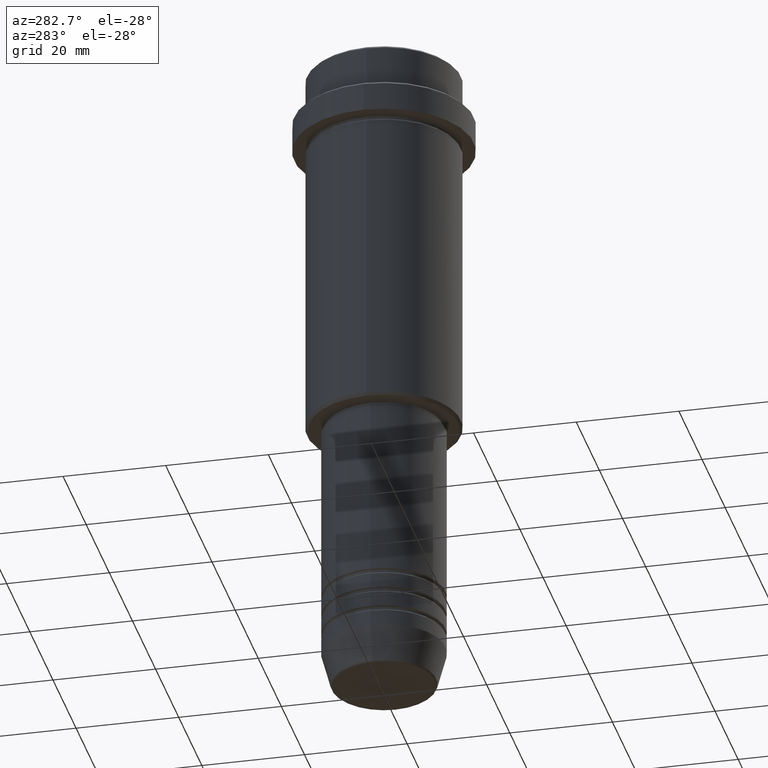
[diagram: clean part render]
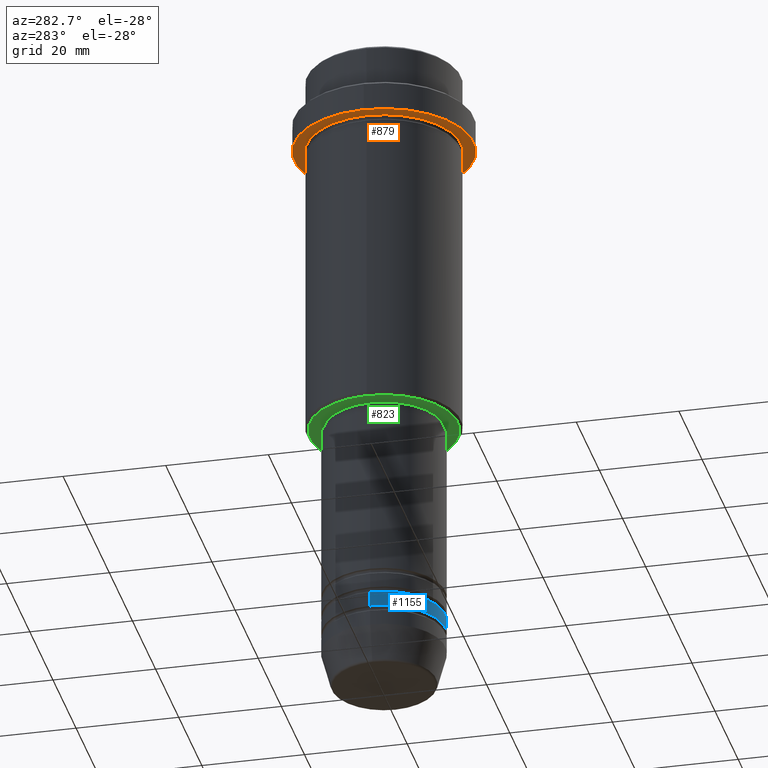
[diagram: same view with three faces highlighted in distinct colors, each labeled with its STEP entity id]
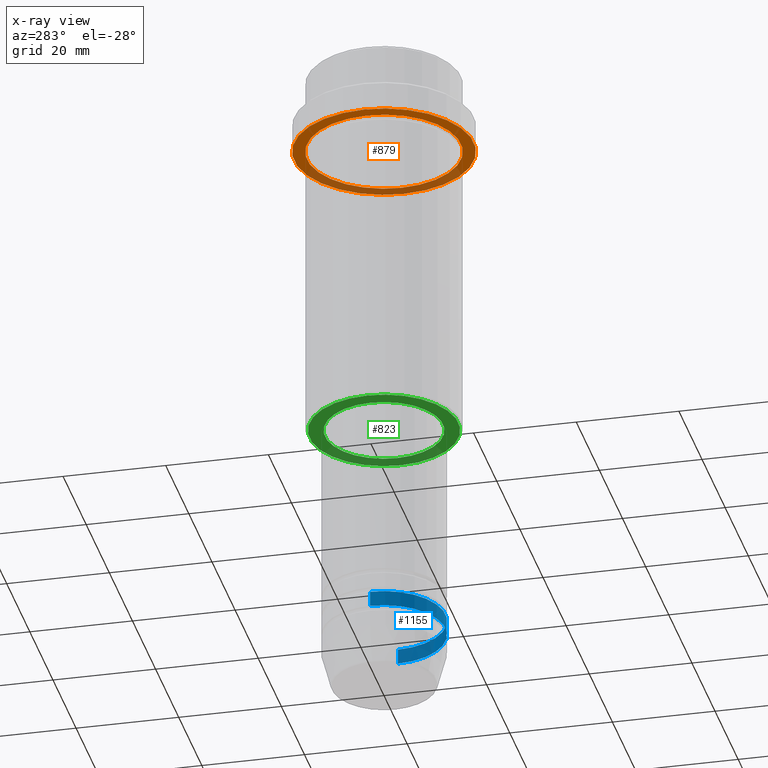
[diagram: x-ray of the same camera — body ghosted, the three highlighted faces saturated]
A machine part, auxiliary view with three faces highlighted in distinct colors.
The next image is the same camera in x-ray (body ghosted, the three faces saturated) — at least one of them is partly hidden behind the body in this view.
Their STEP definitions:

[orange] entity #879 — the highlighted planar face has unit normal (0, 0, -1).
#4 = CARTESIAN_POINT ( 'NONE',  ( 0.000000000000000000, 17.50000000000000000, -15.00000000000000000 ) ) ;
#50 = ORIENTED_EDGE ( 'NONE', *, *, #265, .T. ) ;
#79 = CARTESIAN_POINT ( 'NONE',  ( -14.99999999999999467, 0.000000000000000000, -15.00000000000000000 ) ) ;
#88 = DIRECTION ( 'NONE',  ( -1.000000000000000000, 0.000000000000000000, -0.000000000000000000 ) ) ;
#92 = VERTEX_POINT ( 'NONE', #79 ) ;
#132 = CARTESIAN_POINT ( 'NONE',  ( 0.000000000000000000, 0.000000000000000000, -15.00000000000000000 ) ) ;
#160 = AXIS2_PLACEMENT_3D ( 'NONE', #4, #337, #88 ) ;
#213 = EDGE_LOOP ( 'NONE', ( #50, #724 ) ) ;
#257 = FACE_BOUND ( 'NONE', #213, .T. ) ;
#265 = EDGE_CURVE ( 'NONE', #92, #817, #364, .T. ) ;
#301 = VERTEX_POINT ( 'NONE', #422 ) ;
#322 = CIRCLE ( 'NONE', #1392, 17.50000000000000000 ) ;
#337 = DIRECTION ( 'NONE',  ( 0.000000000000000000, 0.000000000000000000, -1.000000000000000000 ) ) ;
#364 = CIRCLE ( 'NONE', #844, 14.99999999999999467 ) ;
#385 = DIRECTION ( 'NONE',  ( -0.000000000000000000, -0.000000000000000000, 1.000000000000000000 ) ) ;
#402 = AXIS2_PLACEMENT_3D ( 'NONE', #1143, #385, #700 ) ;
#404 = VERTEX_POINT ( 'NONE', #417 ) ;
#417 = CARTESIAN_POINT ( 'NONE',  ( 17.50000000000000000, 0.000000000000000000, -15.00000000000000000 ) ) ;
#418 = DIRECTION ( 'NONE',  ( -0.000000000000000000, -0.000000000000000000, 1.000000000000000000 ) ) ;
#422 = CARTESIAN_POINT ( 'NONE',  ( -17.50000000000000000, 2.143131898507868248E-15, -15.00000000000000000 ) ) ;
#471 = DIRECTION ( 'NONE',  ( 1.000000000000000000, 0.000000000000000000, 0.000000000000000000 ) ) ;
#536 = EDGE_LOOP ( 'NONE', ( #841, #1169 ) ) ;
#556 = EDGE_CURVE ( 'NONE', #301, #404, #1258, .T. ) ;
#652 = EDGE_CURVE ( 'NONE', #404, #301, #322, .T. ) ;
#674 = FACE_OUTER_BOUND ( 'NONE', #536, .T. ) ;
#700 = DIRECTION ( 'NONE',  ( -1.000000000000000000, 0.000000000000000000, 0.000000000000000000 ) ) ;
#724 = ORIENTED_EDGE ( 'NONE', *, *, #1411, .T. ) ;
#800 = CARTESIAN_POINT ( 'NONE',  ( 0.000000000000000000, 0.000000000000000000, -15.00000000000000000 ) ) ;
#817 = VERTEX_POINT ( 'NONE', #1164 ) ;
#841 = ORIENTED_EDGE ( 'NONE', *, *, #652, .F. ) ;
#844 = AXIS2_PLACEMENT_3D ( 'NONE', #845, #418, #1294 ) ;
#845 = CARTESIAN_POINT ( 'NONE',  ( 0.000000000000000000, 0.000000000000000000, -15.00000000000000000 ) ) ;
#879 = ADVANCED_FACE ( 'NONE', ( #257, #674 ), #991, .T. ) ;
#991 = PLANE ( 'NONE',  #160 ) ;
#1113 = DIRECTION ( 'NONE',  ( -0.000000000000000000, -0.000000000000000000, 1.000000000000000000 ) ) ;
#1132 = DIRECTION ( 'NONE',  ( 1.000000000000000000, 0.000000000000000000, 0.000000000000000000 ) ) ;
#1143 = CARTESIAN_POINT ( 'NONE',  ( 0.000000000000000000, 0.000000000000000000, -15.00000000000000000 ) ) ;
#1164 = CARTESIAN_POINT ( 'NONE',  ( 14.99999999999999467, 1.836970198721029194E-15, -15.00000000000000000 ) ) ;
#1169 = ORIENTED_EDGE ( 'NONE', *, *, #556, .F. ) ;
#1251 = DIRECTION ( 'NONE',  ( -0.000000000000000000, -0.000000000000000000, 1.000000000000000000 ) ) ;
#1258 = CIRCLE ( 'NONE', #1366, 17.50000000000000000 ) ;
#1294 = DIRECTION ( 'NONE',  ( -1.000000000000000000, 0.000000000000000000, 0.000000000000000000 ) ) ;
#1355 = CIRCLE ( 'NONE', #402, 14.99999999999999467 ) ;
#1366 = AXIS2_PLACEMENT_3D ( 'NONE', #132, #1113, #471 ) ;
#1392 = AXIS2_PLACEMENT_3D ( 'NONE', #800, #1251, #1132 ) ;
#1411 = EDGE_CURVE ( 'NONE', #817, #92, #1355, .T. ) ;

[blue] entity #1155 — the highlighted cylindrical surface (partial cylindrical patch) has radius 12 mm, axis along (-0, -0, 1).
#5 = LINE ( 'NONE', #1337, #769 ) ;
#29 = VERTEX_POINT ( 'NONE', #887 ) ;
#83 = CARTESIAN_POINT ( 'NONE',  ( 12.00000000000000000, 0.000000000000000000, 0.000000000000000000 ) ) ;
#98 = ORIENTED_EDGE ( 'NONE', *, *, #830, .T. ) ;
#103 = EDGE_CURVE ( 'NONE', #416, #828, #338, .T. ) ;
#104 = ORIENTED_EDGE ( 'NONE', *, *, #311, .F. ) ;
#138 = CARTESIAN_POINT ( 'NONE',  ( -12.00000000000000000, 1.469576158976823947E-15, -118.9999999999998863 ) ) ;
#260 = CYLINDRICAL_SURFACE ( 'NONE', #264, 12.00000000000000000 ) ;
#264 = AXIS2_PLACEMENT_3D ( 'NONE', #1230, #1351, #924 ) ;
#311 = EDGE_CURVE ( 'NONE', #1016, #416, #5, .T. ) ;
#338 = CIRCLE ( 'NONE', #1088, 12.00000000000000000 ) ;
#339 = DIRECTION ( 'NONE',  ( -0.000000000000000000, -0.000000000000000000, 1.000000000000000000 ) ) ;
#344 = AXIS2_PLACEMENT_3D ( 'NONE', #1399, #615, #1153 ) ;
#363 = ORIENTED_EDGE ( 'NONE', *, *, #103, .F. ) ;
#369 = FACE_OUTER_BOUND ( 'NONE', #560, .T. ) ;
#407 = CARTESIAN_POINT ( 'NONE',  ( 12.00000000000000000, 0.000000000000000000, -115.9999999999999005 ) ) ;
#416 = VERTEX_POINT ( 'NONE', #559 ) ;
#477 = VECTOR ( 'NONE', #515, 1000.000000000000000 ) ;
#515 = DIRECTION ( 'NONE',  ( -0.000000000000000000, -0.000000000000000000, 1.000000000000000000 ) ) ;
#559 = CARTESIAN_POINT ( 'NONE',  ( -12.00000000000000000, 1.469576158976823947E-15, -115.9999999999999005 ) ) ;
#560 = EDGE_LOOP ( 'NONE', ( #104, #98, #1002, #363 ) ) ;
#615 = DIRECTION ( 'NONE',  ( -0.000000000000000000, -0.000000000000000000, 1.000000000000000000 ) ) ;
#727 = CARTESIAN_POINT ( 'NONE',  ( 0.000000000000000000, 0.000000000000000000, -115.9999999999999005 ) ) ;
#769 = VECTOR ( 'NONE', #339, 1000.000000000000000 ) ;
#784 = EDGE_CURVE ( 'NONE', #29, #828, #1286, .T. ) ;
#828 = VERTEX_POINT ( 'NONE', #407 ) ;
#830 = EDGE_CURVE ( 'NONE', #1016, #29, #963, .T. ) ;
#887 = CARTESIAN_POINT ( 'NONE',  ( 12.00000000000000000, 0.000000000000000000, -118.9999999999998863 ) ) ;
#924 = DIRECTION ( 'NONE',  ( 1.000000000000000000, 0.000000000000000000, 0.000000000000000000 ) ) ;
#963 = CIRCLE ( 'NONE', #344, 12.00000000000000000 ) ;
#1002 = ORIENTED_EDGE ( 'NONE', *, *, #784, .T. ) ;
#1016 = VERTEX_POINT ( 'NONE', #138 ) ;
#1046 = DIRECTION ( 'NONE',  ( -0.000000000000000000, -0.000000000000000000, 1.000000000000000000 ) ) ;
#1088 = AXIS2_PLACEMENT_3D ( 'NONE', #727, #1046, #1276 ) ;
#1153 = DIRECTION ( 'NONE',  ( 1.000000000000000000, 0.000000000000000000, 0.000000000000000000 ) ) ;
#1155 = ADVANCED_FACE ( 'NONE', ( #369 ), #260, .T. ) ;
#1230 = CARTESIAN_POINT ( 'NONE',  ( 0.000000000000000000, 0.000000000000000000, 0.000000000000000000 ) ) ;
#1276 = DIRECTION ( 'NONE',  ( 1.000000000000000000, 0.000000000000000000, 0.000000000000000000 ) ) ;
#1286 = LINE ( 'NONE', #83, #477 ) ;
#1337 = CARTESIAN_POINT ( 'NONE',  ( -12.00000000000000000, 1.469576158976823947E-15, 0.000000000000000000 ) ) ;
#1351 = DIRECTION ( 'NONE',  ( -0.000000000000000000, -0.000000000000000000, 1.000000000000000000 ) ) ;
#1399 = CARTESIAN_POINT ( 'NONE',  ( 0.000000000000000000, 0.000000000000000000, -118.9999999999998863 ) ) ;

[green] entity #823 — the highlighted planar face has unit normal (0, 0, -1).
#1 = CIRCLE ( 'NONE', #1020, 11.49999999999999467 ) ;
#45 = ORIENTED_EDGE ( 'NONE', *, *, #1250, .T. ) ;
#122 = CARTESIAN_POINT ( 'NONE',  ( 0.000000000000000000, 0.000000000000000000, -75.00000000000001421 ) ) ;
#150 = VERTEX_POINT ( 'NONE', #718 ) ;
#183 = PLANE ( 'NONE',  #1200 ) ;
#216 = AXIS2_PLACEMENT_3D ( 'NONE', #1347, #1029, #611 ) ;
#252 = CIRCLE ( 'NONE', #1053, 11.49999999999999467 ) ;
#293 = CARTESIAN_POINT ( 'NONE',  ( -14.50000000000003908, 1.806354028742348168E-15, -75.00000000000001421 ) ) ;
#303 = AXIS2_PLACEMENT_3D ( 'NONE', #429, #867, #847 ) ;
#319 = CARTESIAN_POINT ( 'NONE',  ( 11.49999999999999467, 0.000000000000000000, -75.00000000000001421 ) ) ;
#336 = DIRECTION ( 'NONE',  ( -0.000000000000000000, -0.000000000000000000, 1.000000000000000000 ) ) ;
#342 = VERTEX_POINT ( 'NONE', #749 ) ;
#355 = ORIENTED_EDGE ( 'NONE', *, *, #1375, .T. ) ;
#368 = CIRCLE ( 'NONE', #303, 14.50000000000003908 ) ;
#429 = CARTESIAN_POINT ( 'NONE',  ( 0.000000000000000000, 0.000000000000000000, -75.00000000000001421 ) ) ;
#504 = VERTEX_POINT ( 'NONE', #293 ) ;
#558 = DIRECTION ( 'NONE',  ( 1.000000000000000000, 0.000000000000000000, 0.000000000000000000 ) ) ;
#565 = EDGE_LOOP ( 'NONE', ( #45, #791 ) ) ;
#611 = DIRECTION ( 'NONE',  ( -1.000000000000000000, 0.000000000000000000, 0.000000000000000000 ) ) ;
#630 = CARTESIAN_POINT ( 'NONE',  ( 0.000000000000000000, 15.00000000000000000, -75.00000000000001421 ) ) ;
#703 = CARTESIAN_POINT ( 'NONE',  ( 0.000000000000000000, 0.000000000000000000, -75.00000000000001421 ) ) ;
#718 = CARTESIAN_POINT ( 'NONE',  ( 14.50000000000003908, 0.000000000000000000, -75.00000000000001421 ) ) ;
#725 = FACE_OUTER_BOUND ( 'NONE', #851, .T. ) ;
#749 = CARTESIAN_POINT ( 'NONE',  ( -11.49999999999999467, 1.408343819019455781E-15, -75.00000000000001421 ) ) ;
#750 = EDGE_CURVE ( 'NONE', #342, #1093, #252, .T. ) ;
#765 = ORIENTED_EDGE ( 'NONE', *, *, #928, .T. ) ;
#791 = ORIENTED_EDGE ( 'NONE', *, *, #750, .T. ) ;
#823 = ADVANCED_FACE ( 'NONE', ( #725, #1293 ), #183, .T. ) ;
#847 = DIRECTION ( 'NONE',  ( -1.000000000000000000, 0.000000000000000000, 0.000000000000000000 ) ) ;
#851 = EDGE_LOOP ( 'NONE', ( #765, #355 ) ) ;
#867 = DIRECTION ( 'NONE',  ( 0.000000000000000000, 0.000000000000000000, -1.000000000000000000 ) ) ;
#928 = EDGE_CURVE ( 'NONE', #150, #504, #368, .T. ) ;
#968 = DIRECTION ( 'NONE',  ( -1.000000000000000000, 0.000000000000000000, -0.000000000000000000 ) ) ;
#1020 = AXIS2_PLACEMENT_3D ( 'NONE', #122, #336, #558 ) ;
#1029 = DIRECTION ( 'NONE',  ( 0.000000000000000000, 0.000000000000000000, -1.000000000000000000 ) ) ;
#1053 = AXIS2_PLACEMENT_3D ( 'NONE', #703, #1244, #1139 ) ;
#1093 = VERTEX_POINT ( 'NONE', #319 ) ;
#1139 = DIRECTION ( 'NONE',  ( 1.000000000000000000, 0.000000000000000000, 0.000000000000000000 ) ) ;
#1200 = AXIS2_PLACEMENT_3D ( 'NONE', #630, #1382, #968 ) ;
#1244 = DIRECTION ( 'NONE',  ( -0.000000000000000000, -0.000000000000000000, 1.000000000000000000 ) ) ;
#1250 = EDGE_CURVE ( 'NONE', #1093, #342, #1, .T. ) ;
#1293 = FACE_BOUND ( 'NONE', #565, .T. ) ;
#1331 = CIRCLE ( 'NONE', #216, 14.50000000000003908 ) ;
#1347 = CARTESIAN_POINT ( 'NONE',  ( 0.000000000000000000, 0.000000000000000000, -75.00000000000001421 ) ) ;
#1375 = EDGE_CURVE ( 'NONE', #504, #150, #1331, .T. ) ;
#1382 = DIRECTION ( 'NONE',  ( 0.000000000000000000, 0.000000000000000000, -1.000000000000000000 ) ) ;